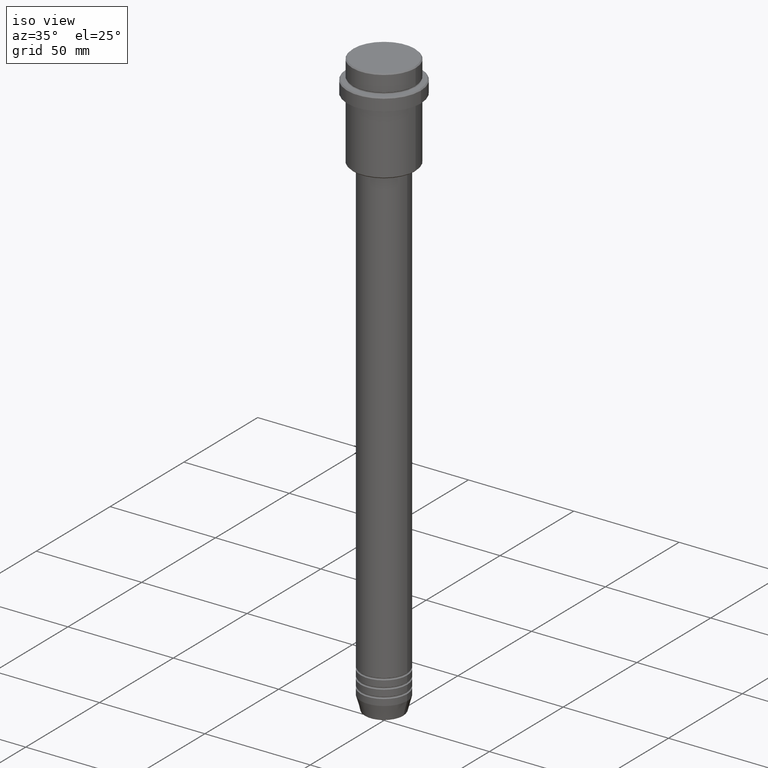
[diagram: clean part render]
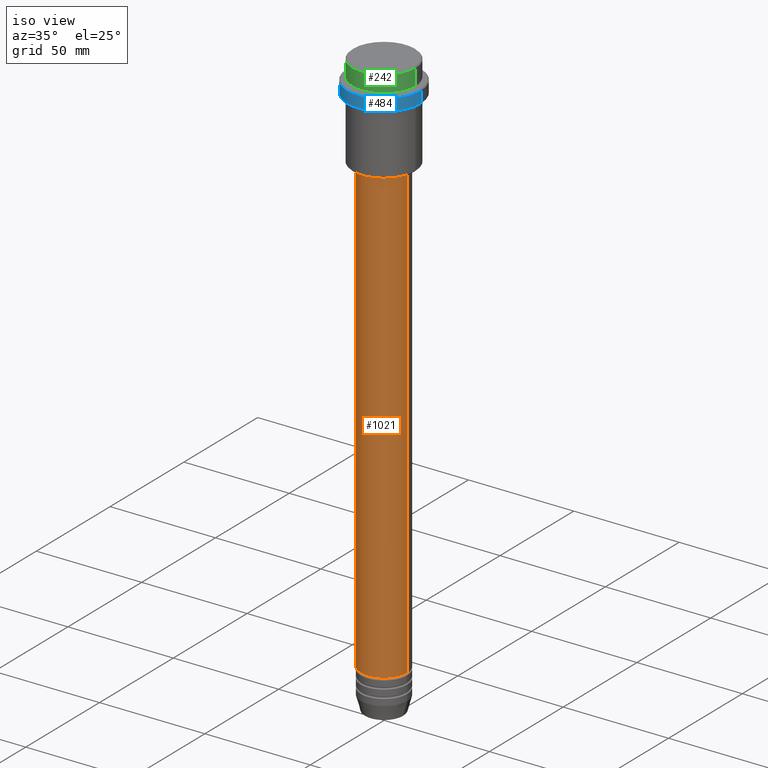
[diagram: same view with three faces highlighted in distinct colors, each labeled with its STEP entity id]
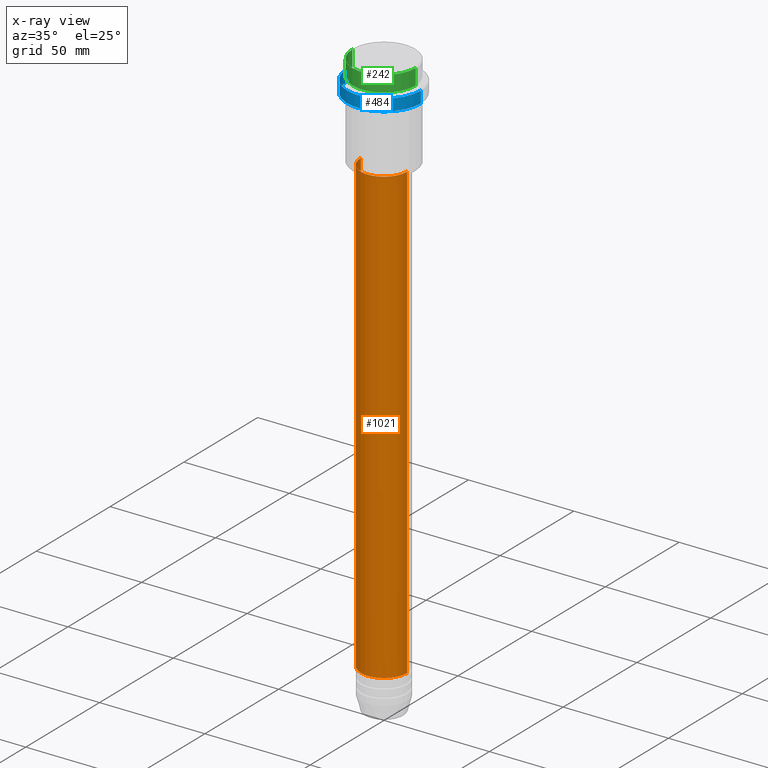
[diagram: x-ray of the same camera — body ghosted, the three highlighted faces saturated]
A machine part, iso view with three faces highlighted in distinct colors.
The next image is the same camera in x-ray (body ghosted, the three faces saturated) — at least one of them is partly hidden behind the body in this view.
Their STEP definitions:

[orange] entity #1021 — the highlighted cylindrical surface (edge-blend (fillet) strip) has radius 11 mm, axis along (-0, -0, 1).
#17 = EDGE_CURVE ( 'NONE', #890, #938, #1320, .T. ) ;
#30 = EDGE_CURVE ( 'NONE', #324, #938, #1028, .T. ) ;
#44 = FACE_OUTER_BOUND ( 'NONE', #319, .T. ) ;
#74 = AXIS2_PLACEMENT_3D ( 'NONE', #591, #818, #729 ) ;
#160 = CARTESIAN_POINT ( 'NONE',  ( 11.00000000000000000, 0.000000000000000000, 0.000000000000000000 ) ) ;
#201 = ORIENTED_EDGE ( 'NONE', *, *, #868, .T. ) ;
#209 = CARTESIAN_POINT ( 'NONE',  ( -11.00000000000000000, 1.347111479062088405E-15, -260.9999999999998863 ) ) ;
#298 = CARTESIAN_POINT ( 'NONE',  ( -11.00000000000000000, 1.347111479062088405E-15, 0.000000000000000000 ) ) ;
#299 = ORIENTED_EDGE ( 'NONE', *, *, #17, .F. ) ;
#319 = EDGE_LOOP ( 'NONE', ( #469, #201, #783, #299 ) ) ;
#324 = VERTEX_POINT ( 'NONE', #1119 ) ;
#438 = VECTOR ( 'NONE', #1259, 1000.000000000000000 ) ;
#458 = DIRECTION ( 'NONE',  ( -0.000000000000000000, -0.000000000000000000, 1.000000000000000000 ) ) ;
#469 = ORIENTED_EDGE ( 'NONE', *, *, #496, .F. ) ;
#496 = EDGE_CURVE ( 'NONE', #1080, #890, #519, .T. ) ;
#519 = LINE ( 'NONE', #298, #1018 ) ;
#591 = CARTESIAN_POINT ( 'NONE',  ( 0.000000000000000000, 0.000000000000000000, -46.00000000000002132 ) ) ;
#597 = DIRECTION ( 'NONE',  ( 1.000000000000000000, 0.000000000000000000, 0.000000000000000000 ) ) ;
#708 = DIRECTION ( 'NONE',  ( -0.000000000000000000, -0.000000000000000000, 1.000000000000000000 ) ) ;
#729 = DIRECTION ( 'NONE',  ( 1.000000000000000000, 0.000000000000000000, 0.000000000000000000 ) ) ;
#777 = CARTESIAN_POINT ( 'NONE',  ( -10.99999999999999822, 1.347111479062088207E-15, -46.00000000000002132 ) ) ;
#783 = ORIENTED_EDGE ( 'NONE', *, *, #30, .T. ) ;
#803 = CYLINDRICAL_SURFACE ( 'NONE', #1228, 11.00000000000000000 ) ;
#818 = DIRECTION ( 'NONE',  ( -0.000000000000000000, -0.000000000000000000, 1.000000000000000000 ) ) ;
#833 = CARTESIAN_POINT ( 'NONE',  ( 10.99999999999999822, 0.000000000000000000, -46.00000000000002132 ) ) ;
#868 = EDGE_CURVE ( 'NONE', #1080, #324, #1413, .T. ) ;
#890 = VERTEX_POINT ( 'NONE', #777 ) ;
#903 = DIRECTION ( 'NONE',  ( 1.000000000000000000, 0.000000000000000000, 0.000000000000000000 ) ) ;
#919 = CARTESIAN_POINT ( 'NONE',  ( 0.000000000000000000, 0.000000000000000000, 0.000000000000000000 ) ) ;
#932 = AXIS2_PLACEMENT_3D ( 'NONE', #1234, #458, #903 ) ;
#938 = VERTEX_POINT ( 'NONE', #833 ) ;
#1018 = VECTOR ( 'NONE', #1396, 1000.000000000000000 ) ;
#1021 = ADVANCED_FACE ( 'NONE', ( #44 ), #803, .T. ) ;
#1028 = LINE ( 'NONE', #160, #438 ) ;
#1080 = VERTEX_POINT ( 'NONE', #209 ) ;
#1119 = CARTESIAN_POINT ( 'NONE',  ( 11.00000000000000000, 0.000000000000000000, -260.9999999999998863 ) ) ;
#1228 = AXIS2_PLACEMENT_3D ( 'NONE', #919, #708, #597 ) ;
#1234 = CARTESIAN_POINT ( 'NONE',  ( 0.000000000000000000, 0.000000000000000000, -260.9999999999998863 ) ) ;
#1259 = DIRECTION ( 'NONE',  ( -0.000000000000000000, -0.000000000000000000, 1.000000000000000000 ) ) ;
#1320 = CIRCLE ( 'NONE', #74, 10.99999999999999822 ) ;
#1396 = DIRECTION ( 'NONE',  ( -0.000000000000000000, -0.000000000000000000, 1.000000000000000000 ) ) ;
#1413 = CIRCLE ( 'NONE', #932, 11.00000000000000000 ) ;

[blue] entity #484 — the highlighted cylindrical surface (partial cylindrical patch) has radius 17.5 mm, axis along (-0, -0, 1).
#14 = ORIENTED_EDGE ( 'NONE', *, *, #270, .F. ) ;
#25 = ORIENTED_EDGE ( 'NONE', *, *, #296, .T. ) ;
#135 = CARTESIAN_POINT ( 'NONE',  ( -17.50000000000000000, 2.143131898507868248E-15, 0.000000000000000000 ) ) ;
#226 = LINE ( 'NONE', #135, #1020 ) ;
#228 = CARTESIAN_POINT ( 'NONE',  ( 0.000000000000000000, 0.000000000000000000, -15.00000000000000178 ) ) ;
#229 = VERTEX_POINT ( 'NONE', #1199 ) ;
#270 = EDGE_CURVE ( 'NONE', #1343, #1049, #226, .T. ) ;
#296 = EDGE_CURVE ( 'NONE', #229, #737, #784, .T. ) ;
#327 = EDGE_CURVE ( 'NONE', #737, #1049, #580, .T. ) ;
#464 = CIRCLE ( 'NONE', #660, 17.50000000000000000 ) ;
#484 = ADVANCED_FACE ( 'NONE', ( #1090 ), #666, .T. ) ;
#499 = ORIENTED_EDGE ( 'NONE', *, *, #327, .T. ) ;
#531 = AXIS2_PLACEMENT_3D ( 'NONE', #1229, #1215, #1103 ) ;
#539 = CARTESIAN_POINT ( 'NONE',  ( 17.50000000000000000, 0.000000000000000000, -9.499999999999973355 ) ) ;
#580 = CIRCLE ( 'NONE', #531, 17.50000000000000000 ) ;
#660 = AXIS2_PLACEMENT_3D ( 'NONE', #228, #790, #671 ) ;
#666 = CYLINDRICAL_SURFACE ( 'NONE', #1061, 17.50000000000000000 ) ;
#671 = DIRECTION ( 'NONE',  ( 1.000000000000000000, 0.000000000000000000, 0.000000000000000000 ) ) ;
#737 = VERTEX_POINT ( 'NONE', #539 ) ;
#784 = LINE ( 'NONE', #1015, #991 ) ;
#790 = DIRECTION ( 'NONE',  ( -0.000000000000000000, -0.000000000000000000, 1.000000000000000000 ) ) ;
#819 = CARTESIAN_POINT ( 'NONE',  ( -17.50000000000000000, 2.143131898507868248E-15, -9.499999999999973355 ) ) ;
#848 = DIRECTION ( 'NONE',  ( -0.000000000000000000, -0.000000000000000000, 1.000000000000000000 ) ) ;
#856 = CARTESIAN_POINT ( 'NONE',  ( 0.000000000000000000, 0.000000000000000000, 0.000000000000000000 ) ) ;
#880 = DIRECTION ( 'NONE',  ( -0.000000000000000000, -0.000000000000000000, 1.000000000000000000 ) ) ;
#968 = ORIENTED_EDGE ( 'NONE', *, *, #1175, .T. ) ;
#991 = VECTOR ( 'NONE', #880, 1000.000000000000000 ) ;
#1015 = CARTESIAN_POINT ( 'NONE',  ( 17.50000000000000000, 0.000000000000000000, 0.000000000000000000 ) ) ;
#1020 = VECTOR ( 'NONE', #1126, 1000.000000000000000 ) ;
#1032 = CARTESIAN_POINT ( 'NONE',  ( -17.50000000000000000, 2.143131898507868248E-15, -15.00000000000000178 ) ) ;
#1049 = VERTEX_POINT ( 'NONE', #819 ) ;
#1061 = AXIS2_PLACEMENT_3D ( 'NONE', #856, #848, #1295 ) ;
#1090 = FACE_OUTER_BOUND ( 'NONE', #1245, .T. ) ;
#1103 = DIRECTION ( 'NONE',  ( 1.000000000000000000, 0.000000000000000000, 0.000000000000000000 ) ) ;
#1126 = DIRECTION ( 'NONE',  ( -0.000000000000000000, -0.000000000000000000, 1.000000000000000000 ) ) ;
#1175 = EDGE_CURVE ( 'NONE', #1343, #229, #464, .T. ) ;
#1199 = CARTESIAN_POINT ( 'NONE',  ( 17.50000000000000000, 0.000000000000000000, -15.00000000000000178 ) ) ;
#1215 = DIRECTION ( 'NONE',  ( 0.000000000000000000, 0.000000000000000000, -1.000000000000000000 ) ) ;
#1229 = CARTESIAN_POINT ( 'NONE',  ( 0.000000000000000000, 0.000000000000000000, -9.499999999999973355 ) ) ;
#1245 = EDGE_LOOP ( 'NONE', ( #14, #968, #25, #499 ) ) ;
#1295 = DIRECTION ( 'NONE',  ( 1.000000000000000000, 0.000000000000000000, 0.000000000000000000 ) ) ;
#1343 = VERTEX_POINT ( 'NONE', #1032 ) ;

[green] entity #242 — the highlighted cylindrical surface (partial cylindrical patch) has radius 15 mm, axis along (-0, -0, 1).
#9 = CIRCLE ( 'NONE', #787, 15.00000000000000000 ) ;
#78 = EDGE_CURVE ( 'NONE', #962, #672, #439, .T. ) ;
#111 = CYLINDRICAL_SURFACE ( 'NONE', #655, 15.00000000000000000 ) ;
#117 = ORIENTED_EDGE ( 'NONE', *, *, #656, .T. ) ;
#172 = DIRECTION ( 'NONE',  ( 0.000000000000000000, 0.000000000000000000, -1.000000000000000000 ) ) ;
#208 = DIRECTION ( 'NONE',  ( 1.000000000000000000, 0.000000000000000000, 0.000000000000000000 ) ) ;
#242 = ADVANCED_FACE ( 'NONE', ( #1398 ), #111, .T. ) ;
#436 = VECTOR ( 'NONE', #923, 1000.000000000000000 ) ;
#439 = CIRCLE ( 'NONE', #460, 15.00000000000000000 ) ;
#460 = AXIS2_PLACEMENT_3D ( 'NONE', #1241, #172, #609 ) ;
#480 = CARTESIAN_POINT ( 'NONE',  ( 15.00000000000000000, 0.000000000000000000, 0.000000000000000000 ) ) ;
#495 = CARTESIAN_POINT ( 'NONE',  ( 0.000000000000000000, 0.000000000000000000, -7.999999999999998224 ) ) ;
#503 = VECTOR ( 'NONE', #615, 1000.000000000000000 ) ;
#507 = DIRECTION ( 'NONE',  ( 1.000000000000000000, 0.000000000000000000, 0.000000000000000000 ) ) ;
#513 = DIRECTION ( 'NONE',  ( -0.000000000000000000, -0.000000000000000000, 1.000000000000000000 ) ) ;
#542 = ORIENTED_EDGE ( 'NONE', *, *, #78, .T. ) ;
#573 = CARTESIAN_POINT ( 'NONE',  ( 15.00000000000000000, 0.000000000000000000, -7.999999999999998224 ) ) ;
#600 = EDGE_CURVE ( 'NONE', #1051, #672, #606, .T. ) ;
#606 = LINE ( 'NONE', #1263, #503 ) ;
#609 = DIRECTION ( 'NONE',  ( 1.000000000000000000, 0.000000000000000000, 0.000000000000000000 ) ) ;
#615 = DIRECTION ( 'NONE',  ( -0.000000000000000000, -0.000000000000000000, 1.000000000000000000 ) ) ;
#623 = EDGE_CURVE ( 'NONE', #834, #962, #1246, .T. ) ;
#655 = AXIS2_PLACEMENT_3D ( 'NONE', #842, #513, #208 ) ;
#656 = EDGE_CURVE ( 'NONE', #1051, #834, #9, .T. ) ;
#672 = VERTEX_POINT ( 'NONE', #1389 ) ;
#740 = ORIENTED_EDGE ( 'NONE', *, *, #600, .F. ) ;
#787 = AXIS2_PLACEMENT_3D ( 'NONE', #495, #1299, #507 ) ;
#834 = VERTEX_POINT ( 'NONE', #573 ) ;
#842 = CARTESIAN_POINT ( 'NONE',  ( 0.000000000000000000, 0.000000000000000000, 0.000000000000000000 ) ) ;
#860 = ORIENTED_EDGE ( 'NONE', *, *, #623, .T. ) ;
#923 = DIRECTION ( 'NONE',  ( -0.000000000000000000, -0.000000000000000000, 1.000000000000000000 ) ) ;
#942 = EDGE_LOOP ( 'NONE', ( #740, #117, #860, #542 ) ) ;
#962 = VERTEX_POINT ( 'NONE', #1157 ) ;
#1051 = VERTEX_POINT ( 'NONE', #1260 ) ;
#1157 = CARTESIAN_POINT ( 'NONE',  ( 15.00000000000000000, 0.000000000000000000, -0.5000000000000663913 ) ) ;
#1241 = CARTESIAN_POINT ( 'NONE',  ( 0.000000000000000000, 0.000000000000000000, -0.5000000000000663913 ) ) ;
#1246 = LINE ( 'NONE', #480, #436 ) ;
#1260 = CARTESIAN_POINT ( 'NONE',  ( -15.00000000000000000, 1.836970198721029589E-15, -7.999999999999998224 ) ) ;
#1263 = CARTESIAN_POINT ( 'NONE',  ( -15.00000000000000000, 1.836970198721029589E-15, 0.000000000000000000 ) ) ;
#1299 = DIRECTION ( 'NONE',  ( -0.000000000000000000, -0.000000000000000000, 1.000000000000000000 ) ) ;
#1389 = CARTESIAN_POINT ( 'NONE',  ( -15.00000000000000000, 1.836970198721029589E-15, -0.5000000000000663913 ) ) ;
#1398 = FACE_OUTER_BOUND ( 'NONE', #942, .T. ) ;